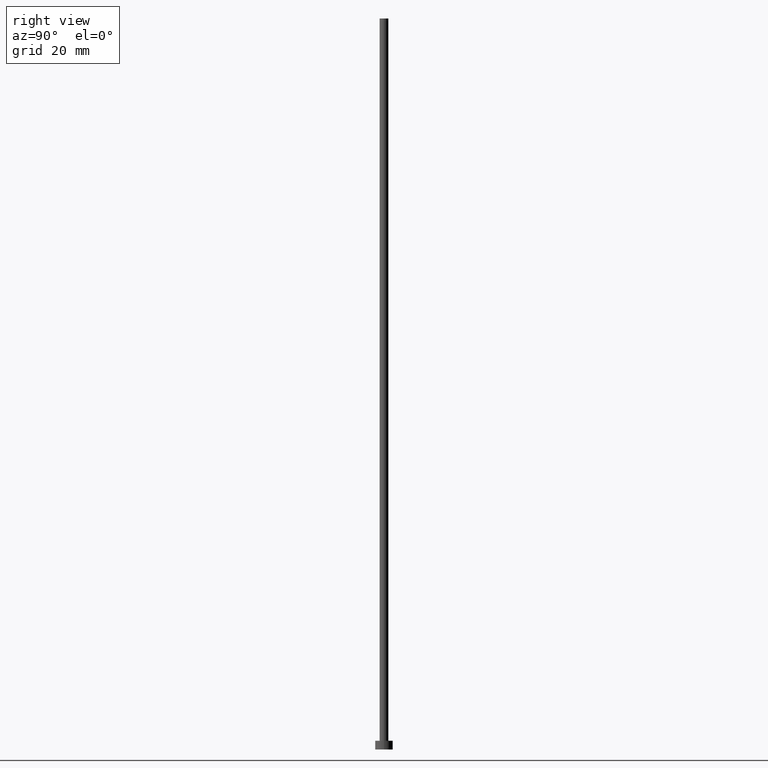
[diagram: clean part render]
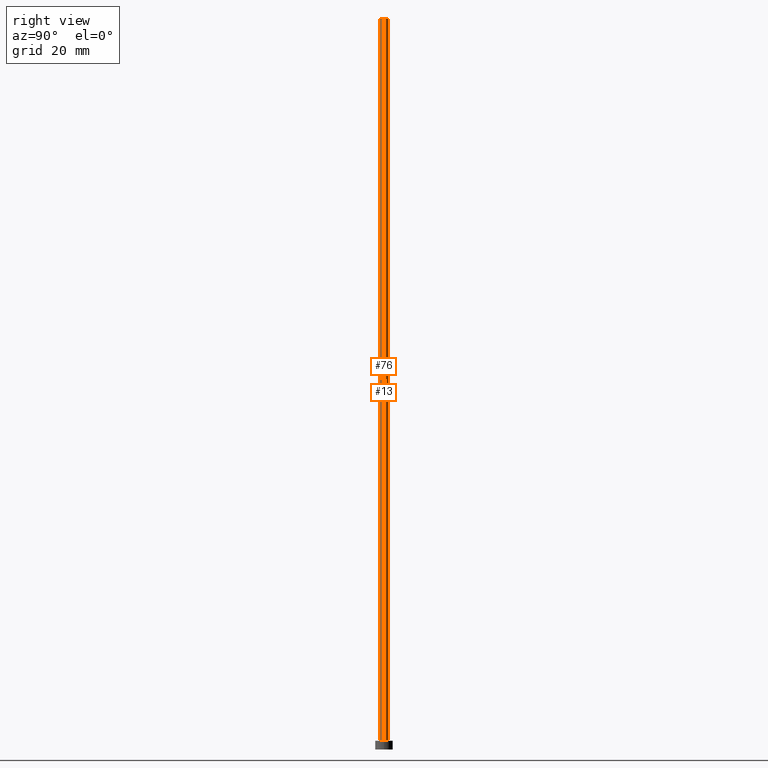
[diagram: same view with one multi-face feature highlighted, each face labeled with its STEP entity id]
A machine part, right view. The highlighted faces form ONE feature: a constant-radius fillet chain: 2 tangent blend faces with common blend radius 1.5 mm. The faces share edges in the B-rep.
Their STEP definitions:
[1] entity #76 (Cylinder):
#6 = DIRECTION ( 'NONE',  ( 0.000000000000000000, 0.000000000000000000, 1.000000000000000000 ) ) ;
#21 = EDGE_LOOP ( 'NONE', ( #193, #43, #255, #239 ) ) ;
#27 = CARTESIAN_POINT ( 'NONE',  ( -1.500000000000000222, 0.000000000000000000, 250.0000000000000000 ) ) ;
#28 = EDGE_CURVE ( 'NONE', #134, #41, #182, .T. ) ;
#35 = CYLINDRICAL_SURFACE ( 'NONE', #207, 1.500000000000000222 ) ;
#41 = VERTEX_POINT ( 'NONE', #117 ) ;
#43 = ORIENTED_EDGE ( 'NONE', *, *, #108, .F. ) ;
#46 = VERTEX_POINT ( 'NONE', #204 ) ;
#49 = CARTESIAN_POINT ( 'NONE',  ( 0.000000000000000000, 0.000000000000000000, 250.0000000000000000 ) ) ;
#63 = CARTESIAN_POINT ( 'NONE',  ( -1.500000000000000222, 0.000000000000000000, 250.0000000000000000 ) ) ;
#76 = ADVANCED_FACE ( 'NONE', ( #232 ), #35, .T. ) ;
#77 = VERTEX_POINT ( 'NONE', #100 ) ;
#81 = DIRECTION ( 'NONE',  ( 1.000000000000000000, 0.000000000000000000, 0.000000000000000000 ) ) ;
#83 = CIRCLE ( 'NONE', #194, 1.500000000000000222 ) ;
#86 = VECTOR ( 'NONE', #244, 1000.000000000000000 ) ;
#91 = DIRECTION ( 'NONE',  ( -0.000000000000000000, -0.000000000000000000, -1.000000000000000000 ) ) ;
#96 = LINE ( 'NONE', #222, #86 ) ;
#98 = DIRECTION ( 'NONE',  ( 1.000000000000000000, 0.000000000000000000, 0.000000000000000000 ) ) ;
#100 = CARTESIAN_POINT ( 'NONE',  ( 1.500000000000000222, 1.836970198721030181E-16, 250.0000000000000000 ) ) ;
#101 = CARTESIAN_POINT ( 'NONE',  ( 0.000000000000000000, 0.000000000000000000, 250.0000000000000000 ) ) ;
#108 = EDGE_CURVE ( 'NONE', #134, #77, #157, .T. ) ;
#117 = CARTESIAN_POINT ( 'NONE',  ( -1.500000000000000222, 0.000000000000000000, 3.000000000000000000 ) ) ;
#134 = VERTEX_POINT ( 'NONE', #27 ) ;
#139 = DIRECTION ( 'NONE',  ( -0.000000000000000000, -0.000000000000000000, -1.000000000000000000 ) ) ;
#140 = DIRECTION ( 'NONE',  ( 0.000000000000000000, 0.000000000000000000, 1.000000000000000000 ) ) ;
#157 = CIRCLE ( 'NONE', #168, 1.500000000000000222 ) ;
#163 = VECTOR ( 'NONE', #139, 1000.000000000000000 ) ;
#168 = AXIS2_PLACEMENT_3D ( 'NONE', #49, #140, #98 ) ;
#178 = CARTESIAN_POINT ( 'NONE',  ( 0.000000000000000000, 0.000000000000000000, 3.000000000000000000 ) ) ;
#182 = LINE ( 'NONE', #63, #163 ) ;
#191 = DIRECTION ( 'NONE',  ( -1.000000000000000000, 0.000000000000000000, 0.000000000000000000 ) ) ;
#193 = ORIENTED_EDGE ( 'NONE', *, *, #211, .F. ) ;
#194 = AXIS2_PLACEMENT_3D ( 'NONE', #178, #6, #81 ) ;
#204 = CARTESIAN_POINT ( 'NONE',  ( 1.500000000000000222, 1.836970198721030181E-16, 3.000000000000000000 ) ) ;
#207 = AXIS2_PLACEMENT_3D ( 'NONE', #101, #91, #191 ) ;
#211 = EDGE_CURVE ( 'NONE', #77, #46, #96, .T. ) ;
#222 = CARTESIAN_POINT ( 'NONE',  ( 1.500000000000000222, 1.836970198721030181E-16, 250.0000000000000000 ) ) ;
#226 = EDGE_CURVE ( 'NONE', #41, #46, #83, .T. ) ;
#232 = FACE_OUTER_BOUND ( 'NONE', #21, .T. ) ;
#239 = ORIENTED_EDGE ( 'NONE', *, *, #226, .T. ) ;
#244 = DIRECTION ( 'NONE',  ( -0.000000000000000000, -0.000000000000000000, -1.000000000000000000 ) ) ;
#255 = ORIENTED_EDGE ( 'NONE', *, *, #28, .T. ) ;
[2] entity #13 (Cylinder):
#8 = CARTESIAN_POINT ( 'NONE',  ( 0.000000000000000000, 0.000000000000000000, 250.0000000000000000 ) ) ;
#9 = AXIS2_PLACEMENT_3D ( 'NONE', #243, #116, #184 ) ;
#13 = ADVANCED_FACE ( 'NONE', ( #29 ), #205, .T. ) ;
#17 = CIRCLE ( 'NONE', #9, 1.500000000000000222 ) ;
#18 = EDGE_LOOP ( 'NONE', ( #94, #79, #106, #176 ) ) ;
#19 = AXIS2_PLACEMENT_3D ( 'NONE', #246, #61, #135 ) ;
#27 = CARTESIAN_POINT ( 'NONE',  ( -1.500000000000000222, 0.000000000000000000, 250.0000000000000000 ) ) ;
#28 = EDGE_CURVE ( 'NONE', #134, #41, #182, .T. ) ;
#29 = FACE_OUTER_BOUND ( 'NONE', #18, .T. ) ;
#41 = VERTEX_POINT ( 'NONE', #117 ) ;
#46 = VERTEX_POINT ( 'NONE', #204 ) ;
#61 = DIRECTION ( 'NONE',  ( 0.000000000000000000, 0.000000000000000000, 1.000000000000000000 ) ) ;
#63 = CARTESIAN_POINT ( 'NONE',  ( -1.500000000000000222, 0.000000000000000000, 250.0000000000000000 ) ) ;
#77 = VERTEX_POINT ( 'NONE', #100 ) ;
#79 = ORIENTED_EDGE ( 'NONE', *, *, #211, .T. ) ;
#86 = VECTOR ( 'NONE', #244, 1000.000000000000000 ) ;
#92 = AXIS2_PLACEMENT_3D ( 'NONE', #8, #160, #179 ) ;
#94 = ORIENTED_EDGE ( 'NONE', *, *, #113, .F. ) ;
#96 = LINE ( 'NONE', #222, #86 ) ;
#100 = CARTESIAN_POINT ( 'NONE',  ( 1.500000000000000222, 1.836970198721030181E-16, 250.0000000000000000 ) ) ;
#106 = ORIENTED_EDGE ( 'NONE', *, *, #161, .T. ) ;
#113 = EDGE_CURVE ( 'NONE', #77, #134, #17, .T. ) ;
#116 = DIRECTION ( 'NONE',  ( 0.000000000000000000, 0.000000000000000000, 1.000000000000000000 ) ) ;
#117 = CARTESIAN_POINT ( 'NONE',  ( -1.500000000000000222, 0.000000000000000000, 3.000000000000000000 ) ) ;
#134 = VERTEX_POINT ( 'NONE', #27 ) ;
#135 = DIRECTION ( 'NONE',  ( 1.000000000000000000, 0.000000000000000000, 0.000000000000000000 ) ) ;
#139 = DIRECTION ( 'NONE',  ( -0.000000000000000000, -0.000000000000000000, -1.000000000000000000 ) ) ;
#160 = DIRECTION ( 'NONE',  ( -0.000000000000000000, -0.000000000000000000, -1.000000000000000000 ) ) ;
#161 = EDGE_CURVE ( 'NONE', #46, #41, #177, .T. ) ;
#163 = VECTOR ( 'NONE', #139, 1000.000000000000000 ) ;
#176 = ORIENTED_EDGE ( 'NONE', *, *, #28, .F. ) ;
#177 = CIRCLE ( 'NONE', #19, 1.500000000000000222 ) ;
#179 = DIRECTION ( 'NONE',  ( -1.000000000000000000, 0.000000000000000000, 0.000000000000000000 ) ) ;
#182 = LINE ( 'NONE', #63, #163 ) ;
#184 = DIRECTION ( 'NONE',  ( 1.000000000000000000, 0.000000000000000000, 0.000000000000000000 ) ) ;
#204 = CARTESIAN_POINT ( 'NONE',  ( 1.500000000000000222, 1.836970198721030181E-16, 3.000000000000000000 ) ) ;
#205 = CYLINDRICAL_SURFACE ( 'NONE', #92, 1.500000000000000222 ) ;
#211 = EDGE_CURVE ( 'NONE', #77, #46, #96, .T. ) ;
#222 = CARTESIAN_POINT ( 'NONE',  ( 1.500000000000000222, 1.836970198721030181E-16, 250.0000000000000000 ) ) ;
#243 = CARTESIAN_POINT ( 'NONE',  ( 0.000000000000000000, 0.000000000000000000, 250.0000000000000000 ) ) ;
#244 = DIRECTION ( 'NONE',  ( -0.000000000000000000, -0.000000000000000000, -1.000000000000000000 ) ) ;
#246 = CARTESIAN_POINT ( 'NONE',  ( 0.000000000000000000, 0.000000000000000000, 3.000000000000000000 ) ) ;